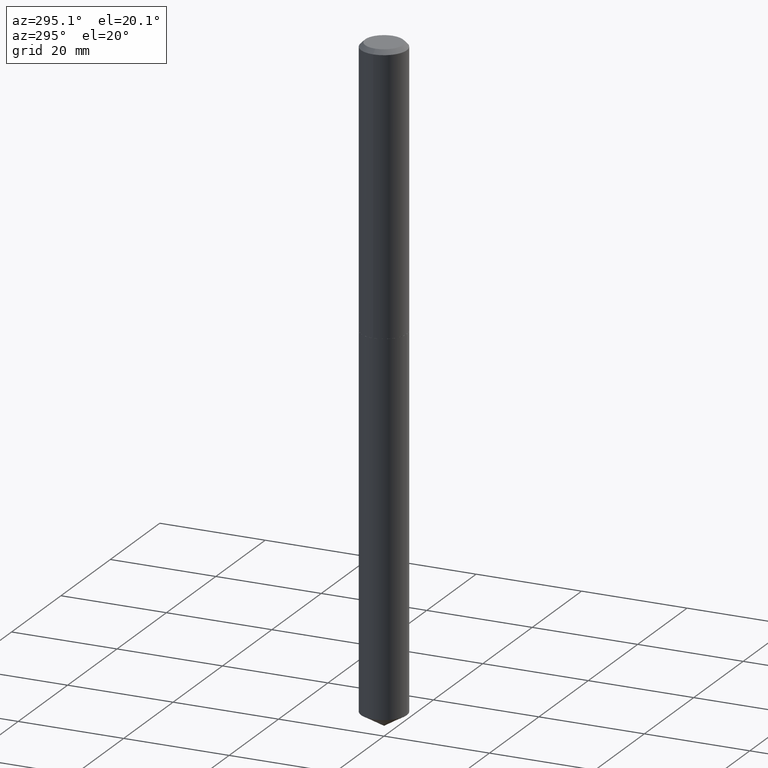
[diagram: clean part render]
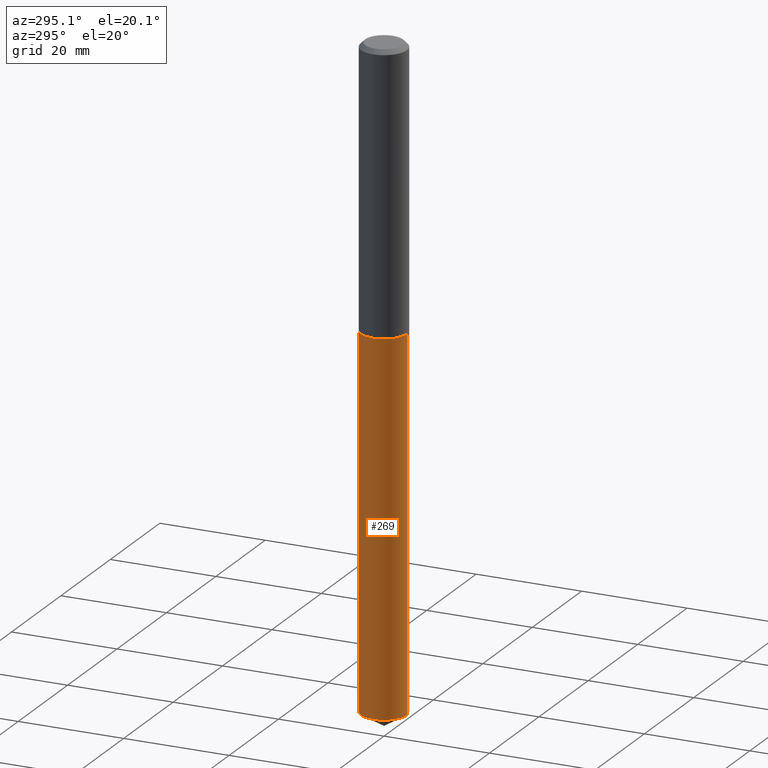
[diagram: same view with one face highlighted and labeled with its STEP entity id]
A machine part, auxiliary view. The second image highlights one B-rep face of the part: STEP entity #269.
In plain terms, the highlighted cylindrical surface (edge-blend (fillet) strip) has radius 4.3498 mm, axis along (-0, 0, 1).
Its self-contained STEP definition (entity closure, byte-faithful):
#11 = DIRECTION ( 'NONE',  ( -2.445501526088303412E-29, 3.491434482079509131E-15, 1.000000000000000000 ) ) ;
#16 = AXIS2_PLACEMENT_3D ( 'NONE', #90, #11, #121 ) ;
#32 = CARTESIAN_POINT ( 'NONE',  ( 1.216804434989222150E-15, 0.1712499999999927691, -2.073800000000000310 ) ) ;
#58 = CARTESIAN_POINT ( 'NONE',  ( 1.216804434989290189E-15, 0.1712499999999927691, -2.073800000000000310 ) ) ;
#70 = CARTESIAN_POINT ( 'NONE',  ( 5.071413210266735491E-29, -7.240634000492913769E-15, -2.073799999999999422 ) ) ;
#82 = CARTESIAN_POINT ( 'NONE',  ( 1.216804434989289598E-15, 0.1712499999999831934, -4.818402618991532549 ) ) ;
#90 = CARTESIAN_POINT ( 'NONE',  ( 1.178334310351648346E-28, -1.682323422404567893E-14, -4.818402618991531661 ) ) ;
#95 = DIRECTION ( 'NONE',  ( -2.445501526088303412E-29, 3.491434482079509131E-15, 1.000000000000000000 ) ) ;
#108 = VERTEX_POINT ( 'NONE', #82 ) ;
#121 = DIRECTION ( 'NONE',  ( -6.982962677686265922E-15, -1.000000000000000000, 3.190479408658993096E-15 ) ) ;
#124 = CARTESIAN_POINT ( 'NONE',  ( -1.195832358553722450E-15, -0.1712500000000072575, -2.073799999999998978 ) ) ;
#127 = VERTEX_POINT ( 'NONE', #58 ) ;
#129 = CARTESIAN_POINT ( 'NONE',  ( 5.071413210266735491E-29, -7.240634000492913769E-15, -2.073799999999999422 ) ) ;
#132 = ORIENTED_EDGE ( 'NONE', *, *, #204, .T. ) ;
#155 = EDGE_CURVE ( 'NONE', #108, #127, #386, .T. ) ;
#158 = FACE_OUTER_BOUND ( 'NONE', #229, .T. ) ;
#160 = CIRCLE ( 'NONE', #266, 0.1712500000000000133 ) ;
#170 = VECTOR ( 'NONE', #207, 39.37007874015748143 ) ;
#187 = DIRECTION ( 'NONE',  ( -6.982962677686265922E-15, -1.000000000000000000, 3.190479408658993096E-15 ) ) ;
#204 = EDGE_CURVE ( 'NONE', #253, #255, #296, .T. ) ;
#206 = CARTESIAN_POINT ( 'NONE',  ( -1.195832358553722450E-15, -0.1712500000000072575, -2.073799999999998978 ) ) ;
#207 = DIRECTION ( 'NONE',  ( -2.445501526088303693E-29, 3.491434482079509131E-15, 1.000000000000000000 ) ) ;
#223 = ORIENTED_EDGE ( 'NONE', *, *, #155, .F. ) ;
#229 = EDGE_LOOP ( 'NONE', ( #223, #312, #132, #257 ) ) ;
#234 = VECTOR ( 'NONE', #353, 39.37007874015748143 ) ;
#237 = DIRECTION ( 'NONE',  ( -6.982962677686265922E-15, -1.000000000000000000, 3.190479408658993096E-15 ) ) ;
#253 = VERTEX_POINT ( 'NONE', #301 ) ;
#255 = VERTEX_POINT ( 'NONE', #124 ) ;
#257 = ORIENTED_EDGE ( 'NONE', *, *, #384, .F. ) ;
#266 = AXIS2_PLACEMENT_3D ( 'NONE', #129, #95, #187 ) ;
#268 = CYLINDRICAL_SURFACE ( 'NONE', #345, 0.1712500000000000133 ) ;
#269 = ADVANCED_FACE ( 'NONE', ( #158 ), #268, .T. ) ;
#296 = LINE ( 'NONE', #206, #170 ) ;
#299 = DIRECTION ( 'NONE',  ( -2.445501526088303412E-29, 3.491434482079509131E-15, 1.000000000000000000 ) ) ;
#301 = CARTESIAN_POINT ( 'NONE',  ( -1.195832358553655397E-15, -0.1712500000000168887, -4.818402618991531661 ) ) ;
#312 = ORIENTED_EDGE ( 'NONE', *, *, #348, .T. ) ;
#345 = AXIS2_PLACEMENT_3D ( 'NONE', #70, #299, #237 ) ;
#348 = EDGE_CURVE ( 'NONE', #108, #253, #366, .T. ) ;
#353 = DIRECTION ( 'NONE',  ( -2.445501526088303693E-29, 3.491434482079509131E-15, 1.000000000000000000 ) ) ;
#366 = CIRCLE ( 'NONE', #16, 0.1712500000000000133 ) ;
#384 = EDGE_CURVE ( 'NONE', #127, #255, #160, .T. ) ;
#386 = LINE ( 'NONE', #32, #234 ) ;